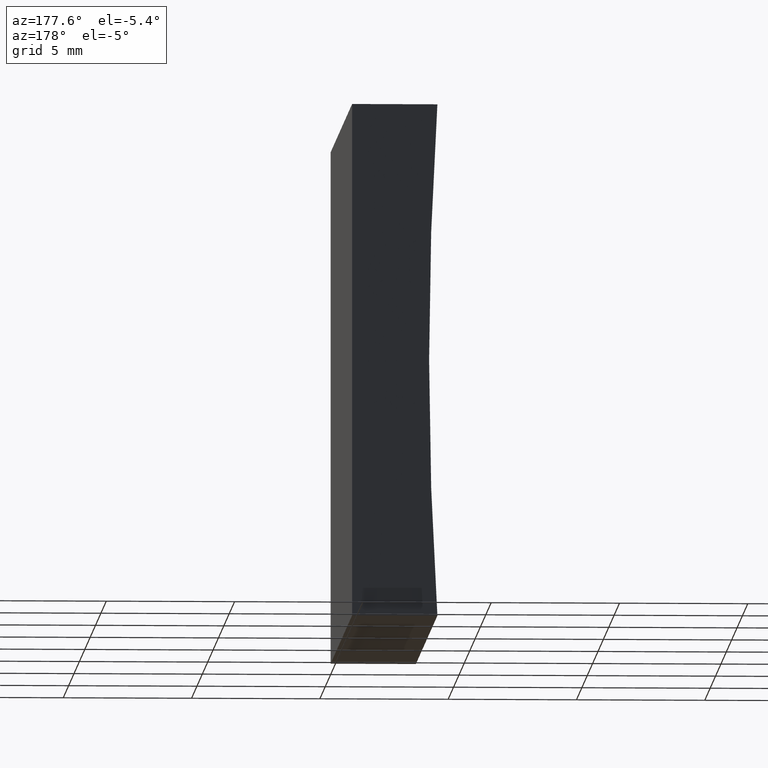
[diagram: clean part render]
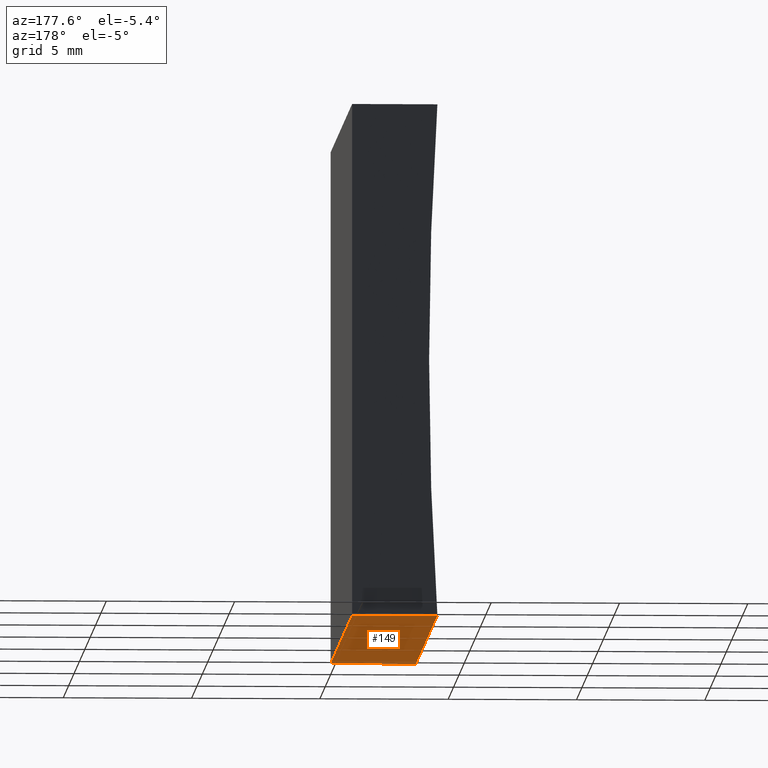
[diagram: same view with one face highlighted and labeled with its STEP entity id]
A machine part, auxiliary view. The second image highlights one B-rep face of the part: STEP entity #149.
In plain terms, the highlighted planar face has unit normal (0, -0, 1).
Its self-contained STEP definition (entity closure, byte-faithful):
#2 = PLANE ( 'NONE',  #117 ) ;
#13 = ORIENTED_EDGE ( 'NONE', *, *, #100, .F. ) ;
#25 = DIRECTION ( 'NONE',  ( 0.0000000000000000000, -0.0000000000000000000, 1.000000000000000000 ) ) ;
#36 = DIRECTION ( 'NONE',  ( -1.000000000000000000, 0.0000000000000000000, 0.0000000000000000000 ) ) ;
#37 = LINE ( 'NONE', #129, #133 ) ;
#46 = CARTESIAN_POINT ( 'NONE',  ( -3.322708383949296800, 0.0000000000000000000, 1.734723475976807100E-015 ) ) ;
#49 = EDGE_LOOP ( 'NONE', ( #109, #13, #50, #178 ) ) ;
#50 = ORIENTED_EDGE ( 'NONE', *, *, #180, .F. ) ;
#55 = CARTESIAN_POINT ( 'NONE',  ( -3.322708383949296800, 20.00000000000000000, 1.734723475976807100E-015 ) ) ;
#62 = CARTESIAN_POINT ( 'NONE',  ( -3.322708383949296800, 20.00000000000000000, 1.734723475976807100E-015 ) ) ;
#63 = VERTEX_POINT ( 'NONE', #155 ) ;
#70 = EDGE_CURVE ( 'NONE', #114, #63, #94, .T. ) ;
#72 = DIRECTION ( 'NONE',  ( 1.000000000000000000, 0.0000000000000000000, -0.0000000000000000000 ) ) ;
#83 = FACE_OUTER_BOUND ( 'NONE', #49, .T. ) ;
#84 = DIRECTION ( 'NONE',  ( -0.0000000000000000000, -1.000000000000000000, -0.0000000000000000000 ) ) ;
#87 = DIRECTION ( 'NONE',  ( -1.000000000000000000, 0.0000000000000000000, 0.0000000000000000000 ) ) ;
#88 = LINE ( 'NONE', #62, #128 ) ;
#94 = LINE ( 'NONE', #196, #132 ) ;
#95 = DIRECTION ( 'NONE',  ( -0.0000000000000000000, -1.000000000000000000, -0.0000000000000000000 ) ) ;
#100 = EDGE_CURVE ( 'NONE', #172, #194, #88, .T. ) ;
#109 = ORIENTED_EDGE ( 'NONE', *, *, #168, .T. ) ;
#111 = CARTESIAN_POINT ( 'NONE',  ( 0.0000000000000000000, 0.0000000000000000000, 0.0000000000000000000 ) ) ;
#114 = VERTEX_POINT ( 'NONE', #157 ) ;
#117 = AXIS2_PLACEMENT_3D ( 'NONE', #123, #25, #72 ) ;
#123 = CARTESIAN_POINT ( 'NONE',  ( 0.0000000000000000000, 20.00000000000000000, 0.0000000000000000000 ) ) ;
#127 = VECTOR ( 'NONE', #36, 1000.000000000000000 ) ;
#128 = VECTOR ( 'NONE', #84, 1000.000000000000000 ) ;
#129 = CARTESIAN_POINT ( 'NONE',  ( 0.0000000000000000000, 20.00000000000000000, 0.0000000000000000000 ) ) ;
#132 = VECTOR ( 'NONE', #95, 1000.000000000000000 ) ;
#133 = VECTOR ( 'NONE', #87, 1000.000000000000000 ) ;
#148 = LINE ( 'NONE', #111, #127 ) ;
#149 = ADVANCED_FACE ( 'NONE', ( #83 ), #2, .F. ) ;
#155 = CARTESIAN_POINT ( 'NONE',  ( 0.0000000000000000000, 0.0000000000000000000, 0.0000000000000000000 ) ) ;
#157 = CARTESIAN_POINT ( 'NONE',  ( 0.0000000000000000000, 20.00000000000000000, 0.0000000000000000000 ) ) ;
#168 = EDGE_CURVE ( 'NONE', #63, #194, #148, .T. ) ;
#172 = VERTEX_POINT ( 'NONE', #55 ) ;
#178 = ORIENTED_EDGE ( 'NONE', *, *, #70, .T. ) ;
#180 = EDGE_CURVE ( 'NONE', #114, #172, #37, .T. ) ;
#194 = VERTEX_POINT ( 'NONE', #46 ) ;
#196 = CARTESIAN_POINT ( 'NONE',  ( 0.0000000000000000000, 20.00000000000000000, 0.0000000000000000000 ) ) ;